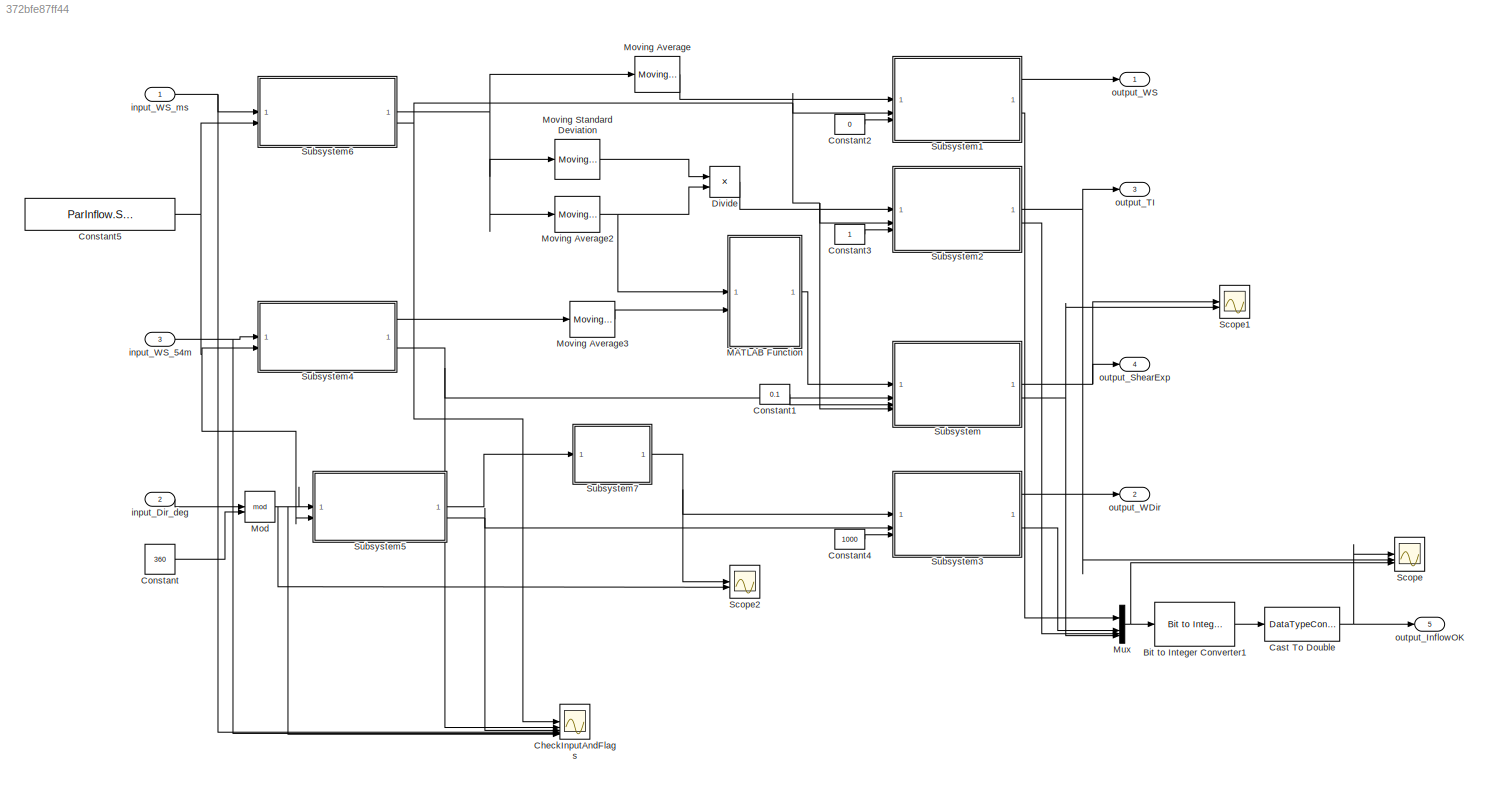
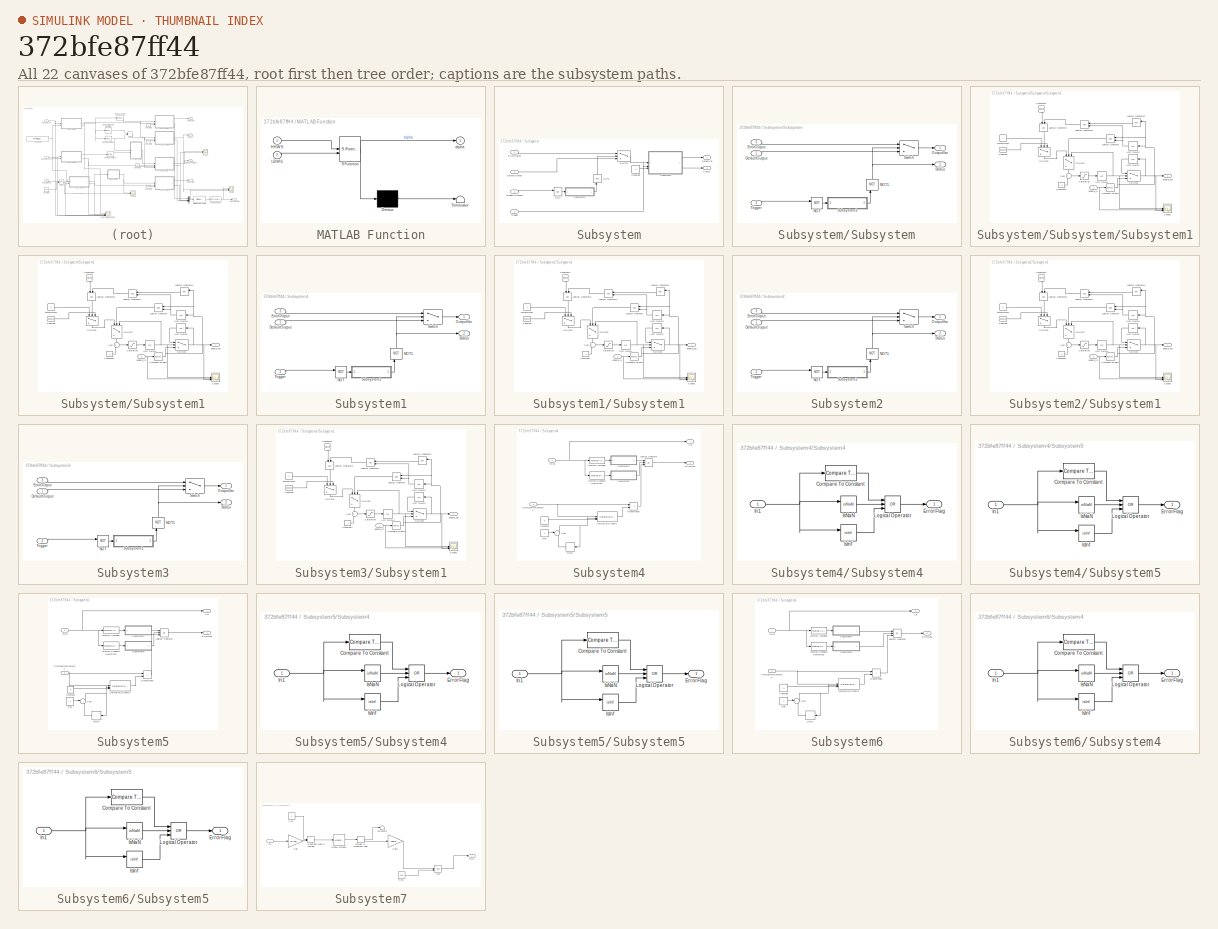
[diagram: thumbnail index - all 22 canvases of the model, root first then tree order]
MODEL slx_372bfe87ff44
KIND model
CONFIG AbsTol = auto
CONFIG EnableMultiTasking = off
CONFIG FixedStep = sample_time
CONFIG MaxStep = auto
CONFIG MinStep = auto
CONFIG RelTol = 1e-3
CONFIG SampleTimeConstraint = Unconstrained
CONFIG SolverName = FixedStepDiscrete
CONFIG StartTime = 0
CONFIG StopTime = duration
BLOCK [Reference] Bit to Integer Converter1  REF=simulink/Logic and Bit
Operations/Bit to Integer
Converter
  LibrarySourceBlock = commutil2/Bit to Integer\nConverter
  SourceBlock = simulink/Logic and Bit\nOperations/Bit to Integer\nConverter
  SourceType = Bit to Integer Converter
BLOCK [DataTypeConversion] Cast To Double
  OutDataTypeStr = double
  RndMeth = Floor
  SaturateOnIntegerOverflow = off
BLOCK [Scope] CheckInputAndFlags
  Floating = off
  NumInputPorts = 6
  ScopeSpecificationString = Simulink.scopes.TimeScopeBlockCfg('CurrentConfiguration', extmgr.ConfigurationSet(extmgr.Configuration('Core','General UI',true),extmgr.Configuration('Core','Source UI',true),extmgr.Configuration('Sources','WiredSimulink',true,'DataLoggingVariableName','ScopeData1'),extmgr.Configuration('Visuals','Time Domain',true,'SerializedDisplays',{struct('MinYLimReal','-14.31092','MaxYLimReal','25.34036','YL...<+1887ch>
BLOCK [Constant] Constant
  Value = 360
BLOCK [Constant] Constant1
  Value = 0.1
BLOCK [Constant] Constant2
  Value = 0
BLOCK [Constant] Constant3
BLOCK [Constant] Constant4
  Value = 1000
BLOCK [Constant] Constant5
  Value = ParInflow.StartupTime
BLOCK [Product] Divide
  Inputs = */
BLOCK [SubSystem] MATLAB Function
  ErrorFcn = Stateflow.Translate.translate
  PermitHierarchicalResolution = ExplicitOnly
  SFBlockType = MATLAB Function
  TreatAsAtomicUnit = on
BLOCK [Demux] MATLAB Function/ Demux 
  Outputs = 1
BLOCK [S-Function] MATLAB Function/ SFunction 
  EnableBusSupport = on
  FunctionName = sf_sfun
  PortCounts = [2 2]
  SFcnIsStateOwnerBlock = off
  SFunctionDeploymentMode = off
  Tag = Stateflow S-Function 2
BLOCK [Terminator] MATLAB Function/ Terminator 
BLOCK [Inport] MATLAB Function/HHWS
BLOCK [Inport] MATLAB Function/LBWS
  Port = 2
BLOCK [Outport] MATLAB Function/alpha
  VectorParamsAs1DForOutWhenUnconnected = off
BLOCK [Math] Mod
  Operator = mod
  SignedPower = on
BLOCK [Reference] Moving Average  REF=dspstat3/Moving
Average
  SourceBlock = dspstat3/Moving\nAverage
  SourceType = dsp.simulink.MovingAverage
BLOCK [Reference] Moving Average2  REF=dspstat3/Moving
Average
  SourceBlock = dspstat3/Moving\nAverage
  SourceType = dsp.simulink.MovingAverage
BLOCK [Reference] Moving Average3  REF=dspstat3/Moving
Average
  SourceBlock = dspstat3/Moving\nAverage
  SourceType = dsp.simulink.MovingAverage
BLOCK [Reference] Moving Standard Deviation  REF=dspstat3/Moving
Standard
Deviation
  SourceBlock = dspstat3/Moving\nStandard\nDeviation
  SourceType = dsp.simulink.MovingStandardDeviation
BLOCK [Mux] Mux
  DisplayOption = bar
BLOCK [Scope] Scope
  Floating = off
  NumInputPorts = 3
  ScopeSpecificationString = Simulink.scopes.TimeScopeBlockCfg('CurrentConfiguration', extmgr.ConfigurationSet(extmgr.Configuration('Core','General UI',true),extmgr.Configuration('Core','Source UI',true),extmgr.Configuration('Sources','WiredSimulink',true,'DataLoggingVariableName','ScopeData2'),extmgr.Configuration('Visuals','Time Domain',true,'SerializedDisplays',{struct('MinYLimReal','6.13326','MaxYLimReal','16.51196','YLab...<+1640ch>
BLOCK [Scope] Scope1
  Floating = off
  NumInputPorts = 2
  ScopeSpecificationString = Simulink.scopes.TimeScopeBlockCfg('CurrentConfiguration', extmgr.ConfigurationSet(extmgr.Configuration('Core','General UI',true),extmgr.Configuration('Core','Source UI',true),extmgr.Configuration('Sources','WiredSimulink',true,'DataLoggingVariableName','ScopeData3'),extmgr.Configuration('Visuals','Time Domain',true,'SerializedDisplays',{struct('MinYLimReal','-0.125','MaxYLimReal','1.125','YLabelRe...<+1787ch>
BLOCK [Scope] Scope2
  Floating = off
  NumInputPorts = 2
  ScopeSpecificationString = Simulink.scopes.TimeScopeBlockCfg('CurrentConfiguration', extmgr.ConfigurationSet(extmgr.Configuration('Core','General UI',true),extmgr.Configuration('Core','Source UI',true),extmgr.Configuration('Sources','WiredSimulink',true,'DataLoggingVariableName','ScopeData4'),extmgr.Configuration('Visuals','Time Domain',true,'SerializedDisplays',{struct('MinYLimReal','165.88052','MaxYLimReal','189.47476','Y...<+1681ch>
BLOCK [SubSystem] Subsystem
BLOCK [Constant] Subsystem/Constant
BLOCK [Inport] Subsystem/DefaultOutput
BLOCK [Inport] Subsystem/ErrorOutput
  Port = 3
BLOCK [Logic] Subsystem/NOT
  AllPortsSameDT = off
  IconShape = distinctive
  Operator = NOT
  OutDataTypeStr = boolean
BLOCK [Logic] Subsystem/NOT1
  AllPortsSameDT = off
  IconShape = distinctive
  NameLocation = right
  Operator = NOT
  OutDataTypeStr = boolean
BLOCK [Outport] Subsystem/OutputVar
  VectorParamsAs1DForOutWhenUnconnected = off
BLOCK [Outport] Subsystem/Status
  Port = 2
  VectorParamsAs1DForOutWhenUnconnected = off
BLOCK [SubSystem] Subsystem/Subsystem
BLOCK [Inport] Subsystem/Subsystem/DefaultOutput
BLOCK [Inport] Subsystem/Subsystem/ErrorOutput
  Port = 3
BLOCK [Logic] Subsystem/Subsystem/NOT
  AllPortsSameDT = off
  IconShape = distinctive
  Operator = NOT
  OutDataTypeStr = boolean
BLOCK [Logic] Subsystem/Subsystem/NOT1
  AllPortsSameDT = off
  IconShape = distinctive
  NameLocation = right
  Operator = NOT
  OutDataTypeStr = boolean
BLOCK [Outport] Subsystem/Subsystem/OutputVar
  VectorParamsAs1DForOutWhenUnconnected = off
BLOCK [Outport] Subsystem/Subsystem/Status
  Port = 2
  VectorParamsAs1DForOutWhenUnconnected = off
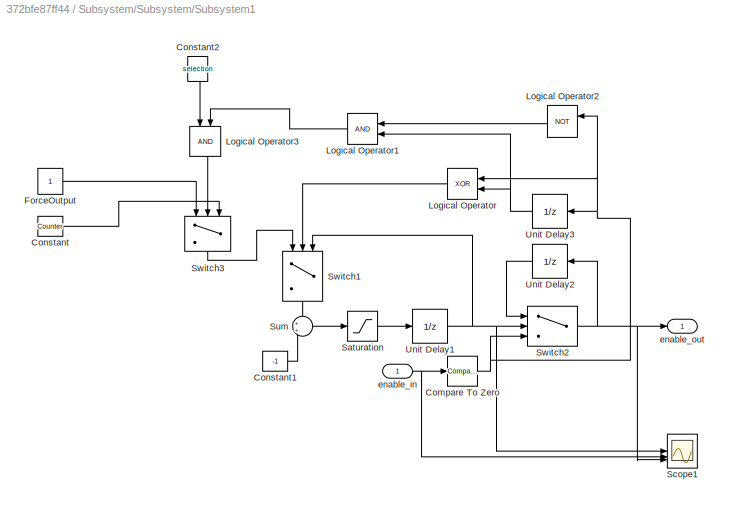
BLOCK [SubSystem] Subsystem/Subsystem/Subsystem1
BLOCK [Reference] Subsystem/Subsystem/Subsystem1/Compare To Zero  REF=simulink/Logic and Bit
Operations/Compare
To Zero
  SourceBlock = simulink/Logic and Bit\nOperations/Compare\nTo Zero
  SourceType = Compare To Zero
BLOCK [Constant] Subsystem/Subsystem/Subsystem1/Constant
  NameLocation = top
  Value = Counter
BLOCK [Constant] Subsystem/Subsystem/Subsystem1/Constant1
  Value = -1
BLOCK [Constant] Subsystem/Subsystem/Subsystem1/Constant2
  NameLocation = right
  Value = selection
BLOCK [Constant] Subsystem/Subsystem/Subsystem1/ForceOutput
  OutDataTypeStr = Inherit: Inherit via back propagation
BLOCK [Logic] Subsystem/Subsystem/Subsystem1/Logical Operator
  AllPortsSameDT = off
  NameLocation = top
  Operator = XOR
  OutDataTypeStr = boolean
BLOCK [Logic] Subsystem/Subsystem/Subsystem1/Logical Operator1
  AllPortsSameDT = off
  NameLocation = top
  OutDataTypeStr = boolean
BLOCK [Logic] Subsystem/Subsystem/Subsystem1/Logical Operator2
  AllPortsSameDT = off
  NameLocation = top
  Operator = NOT
  OutDataTypeStr = boolean
BLOCK [Logic] Subsystem/Subsystem/Subsystem1/Logical Operator3
  AllPortsSameDT = off
  NameLocation = left
  OutDataTypeStr = boolean
BLOCK [Saturate] Subsystem/Subsystem/Subsystem1/Saturation
  LowerLimit = -inf
  UpperLimit = inf
BLOCK [Scope] Subsystem/Subsystem/Subsystem1/Scope1
  Floating = off
  NumInputPorts = 3
  ScopeSpecificationString = Simulink.scopes.TimeScopeBlockCfg('CurrentConfiguration', extmgr.ConfigurationSet(extmgr.Configuration('Core','General UI',true),extmgr.Configuration('Core','Source UI',true),extmgr.Configuration('Sources','WiredSimulink',true,'DataLoggingVariableName','ScopeData2'),extmgr.Configuration('Visuals','Time Domain',true,'SerializedDisplays',{struct('MinYLimReal','-0.03155','MaxYLimReal','1.02709','YLab...<+1468ch>  <repeated x5 — deduplicated; at blocks: Scope1>
BLOCK [Sum] Subsystem/Subsystem/Subsystem1/Sum
BLOCK [Switch] Subsystem/Subsystem/Subsystem1/Switch1
  Criteria = u2 ~= 0
  InputSameDT = off
  NameLocation = left
  SaturateOnIntegerOverflow = off
BLOCK [Switch] Subsystem/Subsystem/Subsystem1/Switch2
  Criteria = u2 ~= 0
  InputSameDT = off
  SaturateOnIntegerOverflow = off
BLOCK [Switch] Subsystem/Subsystem/Subsystem1/Switch3
  Criteria = u2 ~= 0
  InputSameDT = off
  NameLocation = left
  SaturateOnIntegerOverflow = off
BLOCK [UnitDelay] Subsystem/Subsystem/Subsystem1/Unit Delay1
  HasFrameUpgradeWarning = on
  SampleTime = sampling_time
BLOCK [UnitDelay] Subsystem/Subsystem/Subsystem1/Unit Delay2
  HasFrameUpgradeWarning = on
  NameLocation = top
  SampleTime = sampling_time
BLOCK [UnitDelay] Subsystem/Subsystem/Subsystem1/Unit Delay3
  HasFrameUpgradeWarning = on
  NameLocation = top
  SampleTime = sampling_time
BLOCK [Inport] Subsystem/Subsystem/Subsystem1/enable_in
BLOCK [Outport] Subsystem/Subsystem/Subsystem1/enable_out
BLOCK [Switch] Subsystem/Subsystem/Switch
  Criteria = u2 ~= 0
  InputSameDT = off
  SaturateOnIntegerOverflow = off
BLOCK [Inport] Subsystem/Subsystem/Trigger
  Port = 2
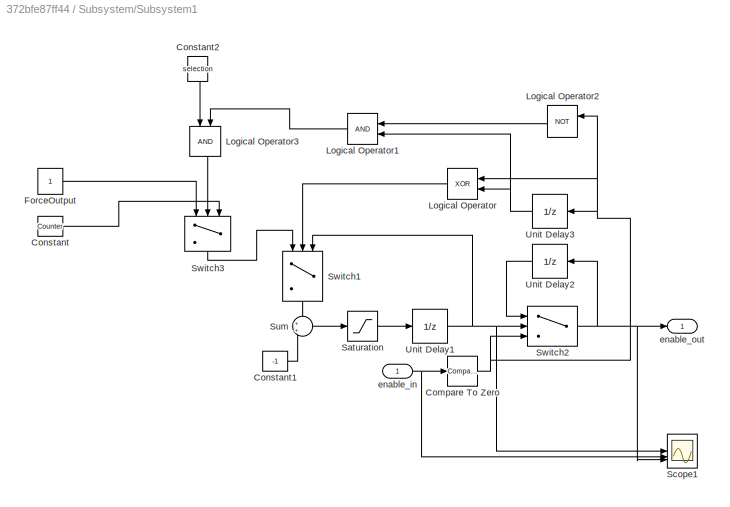
BLOCK [SubSystem] Subsystem/Subsystem1
BLOCK [Reference] Subsystem/Subsystem1/Compare To Zero  REF=simulink/Logic and Bit
Operations/Compare
To Zero
  SourceBlock = simulink/Logic and Bit\nOperations/Compare\nTo Zero
  SourceType = Compare To Zero
BLOCK [Constant] Subsystem/Subsystem1/Constant
  NameLocation = top
  Value = Counter
BLOCK [Constant] Subsystem/Subsystem1/Constant1
  Value = -1
BLOCK [Constant] Subsystem/Subsystem1/Constant2
  NameLocation = right
  Value = selection
BLOCK [Constant] Subsystem/Subsystem1/ForceOutput
  OutDataTypeStr = Inherit: Inherit via back propagation
BLOCK [Logic] Subsystem/Subsystem1/Logical Operator
  AllPortsSameDT = off
  NameLocation = top
  Operator = XOR
  OutDataTypeStr = boolean
BLOCK [Logic] Subsystem/Subsystem1/Logical Operator1
  AllPortsSameDT = off
  NameLocation = top
  OutDataTypeStr = boolean
BLOCK [Logic] Subsystem/Subsystem1/Logical Operator2
  AllPortsSameDT = off
  NameLocation = top
  Operator = NOT
  OutDataTypeStr = boolean
BLOCK [Logic] Subsystem/Subsystem1/Logical Operator3
  AllPortsSameDT = off
  NameLocation = left
  OutDataTypeStr = boolean
BLOCK [Saturate] Subsystem/Subsystem1/Saturation
  LowerLimit = -inf
  UpperLimit = inf
BLOCK [Scope] Subsystem/Subsystem1/Scope1
  Floating = off
  NumInputPorts = 3
BLOCK [Sum] Subsystem/Subsystem1/Sum
BLOCK [Switch] Subsystem/Subsystem1/Switch1
  Criteria = u2 ~= 0
  InputSameDT = off
  NameLocation = left
  SaturateOnIntegerOverflow = off
BLOCK [Switch] Subsystem/Subsystem1/Switch2
  Criteria = u2 ~= 0
  InputSameDT = off
  SaturateOnIntegerOverflow = off
BLOCK [Switch] Subsystem/Subsystem1/Switch3
  Criteria = u2 ~= 0
  InputSameDT = off
  NameLocation = left
  SaturateOnIntegerOverflow = off
BLOCK [UnitDelay] Subsystem/Subsystem1/Unit Delay1
  HasFrameUpgradeWarning = on
  SampleTime = sampling_time
BLOCK [UnitDelay] Subsystem/Subsystem1/Unit Delay2
  HasFrameUpgradeWarning = on
  NameLocation = top
  SampleTime = sampling_time
BLOCK [UnitDelay] Subsystem/Subsystem1/Unit Delay3
  HasFrameUpgradeWarning = on
  NameLocation = top
  SampleTime = sampling_time
BLOCK [Inport] Subsystem/Subsystem1/enable_in
BLOCK [Outport] Subsystem/Subsystem1/enable_out
BLOCK [Switch] Subsystem/Switch
  Criteria = u2 ~= 0
  InputSameDT = off
  SaturateOnIntegerOverflow = off
BLOCK [Inport] Subsystem/Trigger
  Port = 4
BLOCK [Inport] Subsystem/TriggerNOTFatal
  Port = 2
BLOCK [SubSystem] Subsystem1
BLOCK [Inport] Subsystem1/DefaultOutput
BLOCK [Inport] Subsystem1/ErrorOutput
  Port = 3
BLOCK [Logic] Subsystem1/NOT
  AllPortsSameDT = off
  IconShape = distinctive
  Operator = NOT
  OutDataTypeStr = boolean
BLOCK [Logic] Subsystem1/NOT1
  AllPortsSameDT = off
  IconShape = distinctive
  NameLocation = right
  Operator = NOT
  OutDataTypeStr = boolean
BLOCK [Outport] Subsystem1/OutputVar
  VectorParamsAs1DForOutWhenUnconnected = off
BLOCK [Outport] Subsystem1/Status
  Port = 2
  VectorParamsAs1DForOutWhenUnconnected = off
BLOCK [SubSystem] Subsystem1/Subsystem1
BLOCK [Reference] Subsystem1/Subsystem1/Compare To Zero  REF=simulink/Logic and Bit
Operations/Compare
To Zero
  SourceBlock = simulink/Logic and Bit\nOperations/Compare\nTo Zero
  SourceType = Compare To Zero
BLOCK [Constant] Subsystem1/Subsystem1/Constant
  NameLocation = top
  Value = Counter
BLOCK [Constant] Subsystem1/Subsystem1/Constant1
  Value = -1
BLOCK [Constant] Subsystem1/Subsystem1/Constant2
  NameLocation = right
  Value = selection
BLOCK [Constant] Subsystem1/Subsystem1/ForceOutput
  OutDataTypeStr = Inherit: Inherit via back propagation
BLOCK [Logic] Subsystem1/Subsystem1/Logical Operator
  AllPortsSameDT = off
  NameLocation = top
  Operator = XOR
  OutDataTypeStr = boolean
BLOCK [Logic] Subsystem1/Subsystem1/Logical Operator1
  AllPortsSameDT = off
  NameLocation = top
  OutDataTypeStr = boolean
BLOCK [Logic] Subsystem1/Subsystem1/Logical Operator2
  AllPortsSameDT = off
  NameLocation = top
  Operator = NOT
  OutDataTypeStr = boolean
BLOCK [Logic] Subsystem1/Subsystem1/Logical Operator3
  AllPortsSameDT = off
  NameLocation = left
  OutDataTypeStr = boolean
BLOCK [Saturate] Subsystem1/Subsystem1/Saturation
  LowerLimit = -inf
  UpperLimit = inf
BLOCK [Scope] Subsystem1/Subsystem1/Scope1
  Floating = off
  NumInputPorts = 3
BLOCK [Sum] Subsystem1/Subsystem1/Sum
BLOCK [Switch] Subsystem1/Subsystem1/Switch1
  Criteria = u2 ~= 0
  InputSameDT = off
  NameLocation = left
  SaturateOnIntegerOverflow = off
BLOCK [Switch] Subsystem1/Subsystem1/Switch2
  Criteria = u2 ~= 0
  InputSameDT = off
  SaturateOnIntegerOverflow = off
BLOCK [Switch] Subsystem1/Subsystem1/Switch3
  Criteria = u2 ~= 0
  InputSameDT = off
  NameLocation = left
  SaturateOnIntegerOverflow = off
BLOCK [UnitDelay] Subsystem1/Subsystem1/Unit Delay1
  HasFrameUpgradeWarning = on
  SampleTime = sampling_time
BLOCK [UnitDelay] Subsystem1/Subsystem1/Unit Delay2
  HasFrameUpgradeWarning = on
  NameLocation = top
  SampleTime = sampling_time
BLOCK [UnitDelay] Subsystem1/Subsystem1/Unit Delay3
  HasFrameUpgradeWarning = on
  NameLocation = top
  SampleTime = sampling_time
BLOCK [Inport] Subsystem1/Subsystem1/enable_in
BLOCK [Outport] Subsystem1/Subsystem1/enable_out
BLOCK [Switch] Subsystem1/Switch
  Criteria = u2 ~= 0
  InputSameDT = off
  SaturateOnIntegerOverflow = off
BLOCK [Inport] Subsystem1/Trigger
  Port = 2
BLOCK [SubSystem] Subsystem2
BLOCK [Inport] Subsystem2/DefaultOutput
BLOCK [Inport] Subsystem2/ErrorOutput
  Port = 3
BLOCK [Logic] Subsystem2/NOT
  AllPortsSameDT = off
  IconShape = distinctive
  Operator = NOT
  OutDataTypeStr = boolean
BLOCK [Logic] Subsystem2/NOT1
  AllPortsSameDT = off
  IconShape = distinctive
  NameLocation = right
  Operator = NOT
  OutDataTypeStr = boolean
BLOCK [Outport] Subsystem2/OutputVar
  VectorParamsAs1DForOutWhenUnconnected = off
BLOCK [Outport] Subsystem2/Status
  Port = 2
  VectorParamsAs1DForOutWhenUnconnected = off
BLOCK [SubSystem] Subsystem2/Subsystem1
BLOCK [Reference] Subsystem2/Subsystem1/Compare To Zero  REF=simulink/Logic and Bit
Operations/Compare
To Zero
  SourceBlock = simulink/Logic and Bit\nOperations/Compare\nTo Zero
  SourceType = Compare To Zero
BLOCK [Constant] Subsystem2/Subsystem1/Constant
  NameLocation = top
  Value = Counter
BLOCK [Constant] Subsystem2/Subsystem1/Constant1
  Value = -1
BLOCK [Constant] Subsystem2/Subsystem1/Constant2
  NameLocation = right
  Value = selection
BLOCK [Constant] Subsystem2/Subsystem1/ForceOutput
  OutDataTypeStr = Inherit: Inherit via back propagation
BLOCK [Logic] Subsystem2/Subsystem1/Logical Operator
  AllPortsSameDT = off
  NameLocation = top
  Operator = XOR
  OutDataTypeStr = boolean
BLOCK [Logic] Subsystem2/Subsystem1/Logical Operator1
  AllPortsSameDT = off
  NameLocation = top
  OutDataTypeStr = boolean
BLOCK [Logic] Subsystem2/Subsystem1/Logical Operator2
  AllPortsSameDT = off
  NameLocation = top
  Operator = NOT
  OutDataTypeStr = boolean
BLOCK [Logic] Subsystem2/Subsystem1/Logical Operator3
  AllPortsSameDT = off
  NameLocation = left
  OutDataTypeStr = boolean
BLOCK [Saturate] Subsystem2/Subsystem1/Saturation
  LowerLimit = -inf
  UpperLimit = inf
BLOCK [Scope] Subsystem2/Subsystem1/Scope1
  Floating = off
  NumInputPorts = 3
BLOCK [Sum] Subsystem2/Subsystem1/Sum
BLOCK [Switch] Subsystem2/Subsystem1/Switch1
  Criteria = u2 ~= 0
  InputSameDT = off
  NameLocation = left
  SaturateOnIntegerOverflow = off
BLOCK [Switch] Subsystem2/Subsystem1/Switch2
  Criteria = u2 ~= 0
  InputSameDT = off
  SaturateOnIntegerOverflow = off
BLOCK [Switch] Subsystem2/Subsystem1/Switch3
  Criteria = u2 ~= 0
  InputSameDT = off
  NameLocation = left
  SaturateOnIntegerOverflow = off
BLOCK [UnitDelay] Subsystem2/Subsystem1/Unit Delay1
  HasFrameUpgradeWarning = on
  SampleTime = sampling_time
BLOCK [UnitDelay] Subsystem2/Subsystem1/Unit Delay2
  HasFrameUpgradeWarning = on
  NameLocation = top
  SampleTime = sampling_time
BLOCK [UnitDelay] Subsystem2/Subsystem1/Unit Delay3
  HasFrameUpgradeWarning = on
  NameLocation = top
  SampleTime = sampling_time
BLOCK [Inport] Subsystem2/Subsystem1/enable_in
BLOCK [Outport] Subsystem2/Subsystem1/enable_out
BLOCK [Switch] Subsystem2/Switch
  Criteria = u2 ~= 0
  InputSameDT = off
  SaturateOnIntegerOverflow = off
BLOCK [Inport] Subsystem2/Trigger
  Port = 2
BLOCK [SubSystem] Subsystem3
BLOCK [Inport] Subsystem3/DefaultOutput
BLOCK [Inport] Subsystem3/ErrorOutput
  Port = 3
BLOCK [Logic] Subsystem3/NOT
  AllPortsSameDT = off
  IconShape = distinctive
  Operator = NOT
  OutDataTypeStr = boolean
BLOCK [Logic] Subsystem3/NOT1
  AllPortsSameDT = off
  IconShape = distinctive
  NameLocation = right
  Operator = NOT
  OutDataTypeStr = boolean
BLOCK [Outport] Subsystem3/OutputVar
  VectorParamsAs1DForOutWhenUnconnected = off
BLOCK [Outport] Subsystem3/Status
  Port = 2
  VectorParamsAs1DForOutWhenUnconnected = off
BLOCK [SubSystem] Subsystem3/Subsystem1
BLOCK [Reference] Subsystem3/Subsystem1/Compare To Zero  REF=simulink/Logic and Bit
Operations/Compare
To Zero
  SourceBlock = simulink/Logic and Bit\nOperations/Compare\nTo Zero
  SourceType = Compare To Zero
BLOCK [Constant] Subsystem3/Subsystem1/Constant
  NameLocation = top
  Value = Counter
BLOCK [Constant] Subsystem3/Subsystem1/Constant1
  Value = -1
BLOCK [Constant] Subsystem3/Subsystem1/Constant2
  NameLocation = right
  Value = selection
BLOCK [Constant] Subsystem3/Subsystem1/ForceOutput
  OutDataTypeStr = Inherit: Inherit via back propagation
BLOCK [Logic] Subsystem3/Subsystem1/Logical Operator
  AllPortsSameDT = off
  NameLocation = top
  Operator = XOR
  OutDataTypeStr = boolean
BLOCK [Logic] Subsystem3/Subsystem1/Logical Operator1
  AllPortsSameDT = off
  NameLocation = top
  OutDataTypeStr = boolean
BLOCK [Logic] Subsystem3/Subsystem1/Logical Operator2
  AllPortsSameDT = off
  NameLocation = top
  Operator = NOT
  OutDataTypeStr = boolean
BLOCK [Logic] Subsystem3/Subsystem1/Logical Operator3
  AllPortsSameDT = off
  NameLocation = left
  OutDataTypeStr = boolean
BLOCK [Saturate] Subsystem3/Subsystem1/Saturation
  LowerLimit = -inf
  UpperLimit = inf
BLOCK [Scope] Subsystem3/Subsystem1/Scope1
  Floating = off
  NumInputPorts = 3
BLOCK [Sum] Subsystem3/Subsystem1/Sum
BLOCK [Switch] Subsystem3/Subsystem1/Switch1
  Criteria = u2 ~= 0
  InputSameDT = off
  NameLocation = left
  SaturateOnIntegerOverflow = off
BLOCK [Switch] Subsystem3/Subsystem1/Switch2
  Criteria = u2 ~= 0
  InputSameDT = off
  SaturateOnIntegerOverflow = off
BLOCK [Switch] Subsystem3/Subsystem1/Switch3
  Criteria = u2 ~= 0
  InputSameDT = off
  NameLocation = left
  SaturateOnIntegerOverflow = off
BLOCK [UnitDelay] Subsystem3/Subsystem1/Unit Delay1
  HasFrameUpgradeWarning = on
  SampleTime = sampling_time
BLOCK [UnitDelay] Subsystem3/Subsystem1/Unit Delay2
  HasFrameUpgradeWarning = on
  NameLocation = top
  SampleTime = sampling_time
BLOCK [UnitDelay] Subsystem3/Subsystem1/Unit Delay3
  HasFrameUpgradeWarning = on
  NameLocation = top
  SampleTime = sampling_time
BLOCK [Inport] Subsystem3/Subsystem1/enable_in
BLOCK [Outport] Subsystem3/Subsystem1/enable_out
BLOCK [Switch] Subsystem3/Switch
  Criteria = u2 ~= 0
  InputSameDT = off
  SaturateOnIntegerOverflow = off
BLOCK [Inport] Subsystem3/Trigger
  Port = 2
BLOCK [SubSystem] Subsystem4
BLOCK [Constant] Subsystem4/Constant
  Value = 0
BLOCK [Delay] Subsystem4/Delay
  DelayLength = 1
  InitialCondition = 0
  InputPortMap = u0
  NameLocation = top
BLOCK [Outport] Subsystem4/ErrorFlag
  Port = 2
  VectorParamsAs1DForOutWhenUnconnected = off
BLOCK [RelationalOperator] Subsystem4/GreaterThan
  InputSameDT = off
  Operator = >
  OutDataTypeStr = boolean
  RndMeth = Simplest
BLOCK [Inport] Subsystem4/InVar
BLOCK [Logic] Subsystem4/Logical Operator
  AllPortsSameDT = off
  Inputs = 3
  Operator = OR
  OutDataTypeStr = boolean
BLOCK [Reference] Subsystem4/Moving Average5  REF=dspstat3/Moving
Average
  SourceBlock = dspstat3/Moving\nAverage
  SourceType = dsp.simulink.MovingAverage
BLOCK [Reference] Subsystem4/Moving Standard Deviation1  REF=dspstat3/Moving
Standard
Deviation
  SourceBlock = dspstat3/Moving\nStandard\nDeviation
  SourceType = dsp.simulink.MovingStandardDeviation
BLOCK [Constant] Subsystem4/One
  OutDataTypeStr = Inherit: Inherit via back propagation
BLOCK [Reference] Subsystem4/Saturation Dynamic  REF=simulink/Discontinuities/Saturation
Dynamic
  SourceBlock = simulink/Discontinuities/Saturation\nDynamic
  SourceType = Saturation Dynamic
BLOCK [Inport] Subsystem4/StartupTimeSamples
  Port = 2
BLOCK [SubSystem] Subsystem4/Subsystem4
BLOCK [Reference] Subsystem4/Subsystem4/Compare To Constant  REF=simulink/Logic and Bit
Operations/Compare
To Constant
  SourceBlock = simulink/Logic and Bit\nOperations/Compare\nTo Constant
  SourceType = Compare To Constant
BLOCK [Outport] Subsystem4/Subsystem4/ErrorFlag
  VectorParamsAs1DForOutWhenUnconnected = off
BLOCK [Inport] Subsystem4/Subsystem4/In1
BLOCK [RelationalOperator] Subsystem4/Subsystem4/IsInf
  InputSameDT = off
  Operator = isInf
  OutDataTypeStr = boolean
  RndMeth = Simplest
BLOCK [RelationalOperator] Subsystem4/Subsystem4/IsNaN
  InputSameDT = off
  Operator = isNaN
  OutDataTypeStr = boolean
  RndMeth = Simplest
BLOCK [Logic] Subsystem4/Subsystem4/Logical Operator
  AllPortsSameDT = off
  Inputs = 3
  Operator = OR
  OutDataTypeStr = boolean
BLOCK [SubSystem] Subsystem4/Subsystem5
BLOCK [Reference] Subsystem4/Subsystem5/Compare To Constant  REF=simulink/Logic and Bit
Operations/Compare
To Constant
  SourceBlock = simulink/Logic and Bit\nOperations/Compare\nTo Constant
  SourceType = Compare To Constant
BLOCK [Outport] Subsystem4/Subsystem5/ErrorFlag
  VectorParamsAs1DForOutWhenUnconnected = off
BLOCK [Inport] Subsystem4/Subsystem5/In1
BLOCK [RelationalOperator] Subsystem4/Subsystem5/IsInf
  InputSameDT = off
  Operator = isInf
  OutDataTypeStr = boolean
  RndMeth = Simplest
BLOCK [RelationalOperator] Subsystem4/Subsystem5/IsNaN
  InputSameDT = off
  Operator = isNaN
  OutDataTypeStr = boolean
  RndMeth = Simplest
BLOCK [Logic] Subsystem4/Subsystem5/Logical Operator
  AllPortsSameDT = off
  Inputs = 3
  Operator = OR
  OutDataTypeStr = boolean
BLOCK [Sum] Subsystem4/Sum
  Inputs = |++
BLOCK [Outport] Subsystem4/Var
  VectorParamsAs1DForOutWhenUnconnected = off
BLOCK [SubSystem] Subsystem5
BLOCK [Constant] Subsystem5/Constant
  Value = 0
BLOCK [Delay] Subsystem5/Delay
  DelayLength = 1
  InitialCondition = 0
  InputPortMap = u0
  NameLocation = top
BLOCK [Outport] Subsystem5/ErrorFlag
  Port = 2
  VectorParamsAs1DForOutWhenUnconnected = off
BLOCK [RelationalOperator] Subsystem5/GreaterThan
  InputSameDT = off
  Operator = >
  OutDataTypeStr = boolean
  RndMeth = Simplest
BLOCK [Inport] Subsystem5/InVar
BLOCK [Logic] Subsystem5/Logical Operator
  AllPortsSameDT = off
  Inputs = 3
  Operator = OR
  OutDataTypeStr = boolean
BLOCK [Reference] Subsystem5/Moving Average5  REF=dspstat3/Moving
Average
  SourceBlock = dspstat3/Moving\nAverage
  SourceType = dsp.simulink.MovingAverage
BLOCK [Reference] Subsystem5/Moving Standard Deviation1  REF=dspstat3/Moving
Standard
Deviation
  SourceBlock = dspstat3/Moving\nStandard\nDeviation
  SourceType = dsp.simulink.MovingStandardDeviation
BLOCK [Constant] Subsystem5/One
  OutDataTypeStr = Inherit: Inherit via back propagation
BLOCK [Reference] Subsystem5/Saturation Dynamic  REF=simulink/Discontinuities/Saturation
Dynamic
  SourceBlock = simulink/Discontinuities/Saturation\nDynamic
  SourceType = Saturation Dynamic
BLOCK [Inport] Subsystem5/StartupTimeSamples
  Port = 2
BLOCK [SubSystem] Subsystem5/Subsystem4
BLOCK [Reference] Subsystem5/Subsystem4/Compare To Constant  REF=simulink/Logic and Bit
Operations/Compare
To Constant
  SourceBlock = simulink/Logic and Bit\nOperations/Compare\nTo Constant
  SourceType = Compare To Constant
BLOCK [Outport] Subsystem5/Subsystem4/ErrorFlag
  VectorParamsAs1DForOutWhenUnconnected = off
BLOCK [Inport] Subsystem5/Subsystem4/In1
BLOCK [RelationalOperator] Subsystem5/Subsystem4/IsInf
  InputSameDT = off
  Operator = isInf
  OutDataTypeStr = boolean
  RndMeth = Simplest
BLOCK [RelationalOperator] Subsystem5/Subsystem4/IsNaN
  InputSameDT = off
  Operator = isNaN
  OutDataTypeStr = boolean
  RndMeth = Simplest
BLOCK [Logic] Subsystem5/Subsystem4/Logical Operator
  AllPortsSameDT = off
  Inputs = 3
  Operator = OR
  OutDataTypeStr = boolean
BLOCK [SubSystem] Subsystem5/Subsystem5
BLOCK [Reference] Subsystem5/Subsystem5/Compare To Constant  REF=simulink/Logic and Bit
Operations/Compare
To Constant
  SourceBlock = simulink/Logic and Bit\nOperations/Compare\nTo Constant
  SourceType = Compare To Constant
BLOCK [Outport] Subsystem5/Subsystem5/ErrorFlag
  VectorParamsAs1DForOutWhenUnconnected = off
BLOCK [Inport] Subsystem5/Subsystem5/In1
BLOCK [RelationalOperator] Subsystem5/Subsystem5/IsInf
  InputSameDT = off
  Operator = isInf
  OutDataTypeStr = boolean
  RndMeth = Simplest
BLOCK [RelationalOperator] Subsystem5/Subsystem5/IsNaN
  InputSameDT = off
  Operator = isNaN
  OutDataTypeStr = boolean
  RndMeth = Simplest
BLOCK [Logic] Subsystem5/Subsystem5/Logical Operator
  AllPortsSameDT = off
  Inputs = 3
  Operator = OR
  OutDataTypeStr = boolean
BLOCK [Sum] Subsystem5/Sum
  Inputs = |++
BLOCK [Outport] Subsystem5/Var
  VectorParamsAs1DForOutWhenUnconnected = off
BLOCK [SubSystem] Subsystem6
BLOCK [Constant] Subsystem6/Constant
  Value = 0
BLOCK [Delay] Subsystem6/Delay
  DelayLength = 1
  InitialCondition = 0
  InputPortMap = u0
  NameLocation = top
BLOCK [Outport] Subsystem6/ErrorFlag
  Port = 2
  VectorParamsAs1DForOutWhenUnconnected = off
BLOCK [RelationalOperator] Subsystem6/GreaterThan
  InputSameDT = off
  Operator = >
  OutDataTypeStr = boolean
  RndMeth = Simplest
BLOCK [Inport] Subsystem6/InVar
BLOCK [Logic] Subsystem6/Logical Operator
  AllPortsSameDT = off
  Inputs = 3
  Operator = OR
  OutDataTypeStr = boolean
BLOCK [Reference] Subsystem6/Moving Average5  REF=dspstat3/Moving
Average
  SourceBlock = dspstat3/Moving\nAverage
  SourceType = dsp.simulink.MovingAverage
BLOCK [Reference] Subsystem6/Moving Standard Deviation1  REF=dspstat3/Moving
Standard
Deviation
  SourceBlock = dspstat3/Moving\nStandard\nDeviation
  SourceType = dsp.simulink.MovingStandardDeviation
BLOCK [Constant] Subsystem6/One
  OutDataTypeStr = Inherit: Inherit via back propagation
BLOCK [Reference] Subsystem6/Saturation Dynamic  REF=simulink/Discontinuities/Saturation
Dynamic
  SourceBlock = simulink/Discontinuities/Saturation\nDynamic
  SourceType = Saturation Dynamic
BLOCK [Inport] Subsystem6/StartupTimeSamples
  Port = 2
BLOCK [SubSystem] Subsystem6/Subsystem4
BLOCK [Reference] Subsystem6/Subsystem4/Compare To Constant  REF=simulink/Logic and Bit
Operations/Compare
To Constant
  SourceBlock = simulink/Logic and Bit\nOperations/Compare\nTo Constant
  SourceType = Compare To Constant
BLOCK [Outport] Subsystem6/Subsystem4/ErrorFlag
  VectorParamsAs1DForOutWhenUnconnected = off
BLOCK [Inport] Subsystem6/Subsystem4/In1
BLOCK [RelationalOperator] Subsystem6/Subsystem4/IsInf
  InputSameDT = off
  Operator = isInf
  OutDataTypeStr = boolean
  RndMeth = Simplest
BLOCK [RelationalOperator] Subsystem6/Subsystem4/IsNaN
  InputSameDT = off
  Operator = isNaN
  OutDataTypeStr = boolean
  RndMeth = Simplest
BLOCK [Logic] Subsystem6/Subsystem4/Logical Operator
  AllPortsSameDT = off
  Inputs = 3
  Operator = OR
  OutDataTypeStr = boolean
BLOCK [SubSystem] Subsystem6/Subsystem5
BLOCK [Reference] Subsystem6/Subsystem5/Compare To Constant  REF=simulink/Logic and Bit
Operations/Compare
To Constant
  SourceBlock = simulink/Logic and Bit\nOperations/Compare\nTo Constant
  SourceType = Compare To Constant
BLOCK [Outport] Subsystem6/Subsystem5/ErrorFlag
  VectorParamsAs1DForOutWhenUnconnected = off
BLOCK [Inport] Subsystem6/Subsystem5/In1
BLOCK [RelationalOperator] Subsystem6/Subsystem5/IsInf
  InputSameDT = off
  Operator = isInf
  OutDataTypeStr = boolean
  RndMeth = Simplest
BLOCK [RelationalOperator] Subsystem6/Subsystem5/IsNaN
  InputSameDT = off
  Operator = isNaN
  OutDataTypeStr = boolean
  RndMeth = Simplest
BLOCK [Logic] Subsystem6/Subsystem5/Logical Operator
  AllPortsSameDT = off
  Inputs = 3
  Operator = OR
  OutDataTypeStr = boolean
BLOCK [Sum] Subsystem6/Sum
  Inputs = |++
BLOCK [Outport] Subsystem6/Var
  VectorParamsAs1DForOutWhenUnconnected = off
BLOCK [SubSystem] Subsystem7
BLOCK [ComplexToMagnitudeAngle] Subsystem7/Complex to Magnitude-Angle
BLOCK [Gain] Subsystem7/Gain
  Gain = pi/180
BLOCK [Gain] Subsystem7/Gain1
  Gain = 180/pi
BLOCK [Inport] Subsystem7/In1
BLOCK [MagnitudeAngleToComplex] Subsystem7/Magnitude-Angle to Complex
BLOCK [Math] Subsystem7/Mod
  Operator = mod
  SignedPower = on
BLOCK [Reference] Subsystem7/Moving Average1  REF=dspstat3/Moving
Average
  SourceBlock = dspstat3/Moving\nAverage
  SourceType = dsp.simulink.MovingAverage
BLOCK [Constant] Subsystem7/One
  OutDataTypeStr = Inherit: Inherit via back propagation
BLOCK [Constant] Subsystem7/One1
  OutDataTypeStr = Inherit: Inherit via back propagation
  Value = 360
BLOCK [Outport] Subsystem7/Out1
  VectorParamsAs1DForOutWhenUnconnected = off
BLOCK [Terminator] Subsystem7/Terminator
BLOCK [Inport] input_Dir_deg
  Port = 2
  PortDimensions = 1
BLOCK [Inport] input_WS_54m
  Port = 3
  PortDimensions = 1
BLOCK [Inport] input_WS_ms
  PortDimensions = 1
BLOCK [Outport] output_InflowOK
  Port = 5
  VectorParamsAs1DForOutWhenUnconnected = off
BLOCK [Outport] output_ShearExp
  Port = 4
  VectorParamsAs1DForOutWhenUnconnected = off
BLOCK [Outport] output_TI
  Port = 3
  VectorParamsAs1DForOutWhenUnconnected = off
BLOCK [Outport] output_WDir
  Port = 2
  VectorParamsAs1DForOutWhenUnconnected = off
BLOCK [Outport] output_WS
  VectorParamsAs1DForOutWhenUnconnected = off
LINE Bit to Integer Converter1:1 -> Cast To Double:1
NET Cast To Double:1 -> Scope:1, output_InflowOK:1
LINE Constant1:1 -> Subsystem:3
LINE Constant2:1 -> Subsystem1:3
LINE Constant3:1 -> Subsystem2:3
LINE Constant4:1 -> Subsystem3:3
NET Constant5:1 -> Subsystem4:2, Subsystem5:2, Subsystem6:2
LINE Constant:1 -> Mod:2
LINE Divide:1 -> Subsystem2:1
LINE MATLAB Function:1 -> Subsystem:1
NET Mod:1 -> CheckInputAndFlags:6, Scope2:2, Subsystem5:1
NET Moving Average2:1 -> Divide:2, MATLAB Function:1
LINE Moving Average3:1 -> MATLAB Function:2
LINE Moving Average:1 -> Subsystem1:1
LINE Moving Standard Deviation:1 -> Divide:1
NET Mux:1 -> Bit to Integer Converter1:1, Scope:3
LINE Subsystem/Constant:1 -> Subsystem/Subsystem:3
LINE Subsystem/DefaultOutput:1 -> Subsystem/Switch:3
LINE Subsystem/ErrorOutput:1 -> Subsystem/Switch:1
LINE Subsystem/NOT1:1 -> Subsystem/Switch:2
LINE Subsystem/NOT:1 -> Subsystem/Subsystem1:1
LINE Subsystem/Subsystem/DefaultOutput:1 -> Subsystem/Subsystem/Switch:3
LINE Subsystem/Subsystem/ErrorOutput:1 -> Subsystem/Subsystem/Switch:1
NET Subsystem/Subsystem/NOT1:1 -> Subsystem/Subsystem/Status:1, Subsystem/Subsystem/Switch:2
LINE Subsystem/Subsystem/NOT:1 -> Subsystem/Subsystem/Subsystem1:1
NET Subsystem/Subsystem/Subsystem1/Compare To Zero:1 -> Subsystem/Subsystem/Subsystem1/Logical Operator2:1, Subsystem/Subsystem/Subsystem1/Logical Operator:1, Subsystem/Subsystem/Subsystem1/Switch2:3, Subsystem/Subsystem/Subsystem1/Unit Delay3:1
LINE Subsystem/Subsystem/Subsystem1/Constant1:1 -> Subsystem/Subsystem/Subsystem1/Sum:2
LINE Subsystem/Subsystem/Subsystem1/Constant2:1 -> Subsystem/Subsystem/Subsystem1/Logical Operator3:1
LINE Subsystem/Subsystem/Subsystem1/Constant:1 -> Subsystem/Subsystem/Subsystem1/Switch3:3
LINE Subsystem/Subsystem/Subsystem1/ForceOutput:1 -> Subsystem/Subsystem/Subsystem1/Switch3:1
LINE Subsystem/Subsystem/Subsystem1/Logical Operator1:1 -> Subsystem/Subsystem/Subsystem1/Logical Operator3:2
LINE Subsystem/Subsystem/Subsystem1/Logical Operator2:1 -> Subsystem/Subsystem/Subsystem1/Logical Operator1:1
LINE Subsystem/Subsystem/Subsystem1/Logical Operator3:1 -> Subsystem/Subsystem/Subsystem1/Switch3:2
LINE Subsystem/Subsystem/Subsystem1/Logical Operator:1 -> Subsystem/Subsystem/Subsystem1/Switch1:2
LINE Subsystem/Subsystem/Subsystem1/Saturation:1 -> Subsystem/Subsystem/Subsystem1/Unit Delay1:1
LINE Subsystem/Subsystem/Subsystem1/Sum:1 -> Subsystem/Subsystem/Subsystem1/Saturation:1
LINE Subsystem/Subsystem/Subsystem1/Switch1:1 -> Subsystem/Subsystem/Subsystem1/Sum:1
NET Subsystem/Subsystem/Subsystem1/Switch2:1 -> Subsystem/Subsystem/Subsystem1/Scope1:3, Subsystem/Subsystem/Subsystem1/Unit Delay2:1, Subsystem/Subsystem/Subsystem1/enable_out:1
LINE Subsystem/Subsystem/Subsystem1/Switch3:1 -> Subsystem/Subsystem/Subsystem1/Switch1:1
NET Subsystem/Subsystem/Subsystem1/Unit Delay1:1 -> Subsystem/Subsystem/Subsystem1/Scope1:1, Subsystem/Subsystem/Subsystem1/Switch1:3, Subsystem/Subsystem/Subsystem1/Switch2:2
LINE Subsystem/Subsystem/Subsystem1/Unit Delay2:1 -> Subsystem/Subsystem/Subsystem1/Switch2:1
NET Subsystem/Subsystem/Subsystem1/Unit Delay3:1 -> Subsystem/Subsystem/Subsystem1/Logical Operator1:2, Subsystem/Subsystem/Subsystem1/Logical Operator:2
NET Subsystem/Subsystem/Subsystem1/enable_in:1 -> Subsystem/Subsystem/Subsystem1/Compare To Zero:1, Subsystem/Subsystem/Subsystem1/Scope1:2
LINE Subsystem/Subsystem/Subsystem1:1 -> Subsystem/Subsystem/NOT1:1
LINE Subsystem/Subsystem/Switch:1 -> Subsystem/Subsystem/OutputVar:1
LINE Subsystem/Subsystem/Trigger:1 -> Subsystem/Subsystem/NOT:1
NET Subsystem/Subsystem1/Compare To Zero:1 -> Subsystem/Subsystem1/Logical Operator2:1, Subsystem/Subsystem1/Logical Operator:1, Subsystem/Subsystem1/Switch2:3, Subsystem/Subsystem1/Unit Delay3:1
LINE Subsystem/Subsystem1/Constant1:1 -> Subsystem/Subsystem1/Sum:2
LINE Subsystem/Subsystem1/Constant2:1 -> Subsystem/Subsystem1/Logical Operator3:1
LINE Subsystem/Subsystem1/Constant:1 -> Subsystem/Subsystem1/Switch3:3
LINE Subsystem/Subsystem1/ForceOutput:1 -> Subsystem/Subsystem1/Switch3:1
LINE Subsystem/Subsystem1/Logical Operator1:1 -> Subsystem/Subsystem1/Logical Operator3:2
LINE Subsystem/Subsystem1/Logical Operator2:1 -> Subsystem/Subsystem1/Logical Operator1:1
LINE Subsystem/Subsystem1/Logical Operator3:1 -> Subsystem/Subsystem1/Switch3:2
LINE Subsystem/Subsystem1/Logical Operator:1 -> Subsystem/Subsystem1/Switch1:2
LINE Subsystem/Subsystem1/Saturation:1 -> Subsystem/Subsystem1/Unit Delay1:1
LINE Subsystem/Subsystem1/Sum:1 -> Subsystem/Subsystem1/Saturation:1
LINE Subsystem/Subsystem1/Switch1:1 -> Subsystem/Subsystem1/Sum:1
NET Subsystem/Subsystem1/Switch2:1 -> Subsystem/Subsystem1/Scope1:3, Subsystem/Subsystem1/Unit Delay2:1, Subsystem/Subsystem1/enable_out:1
LINE Subsystem/Subsystem1/Switch3:1 -> Subsystem/Subsystem1/Switch1:1
NET Subsystem/Subsystem1/Unit Delay1:1 -> Subsystem/Subsystem1/Scope1:1, Subsystem/Subsystem1/Switch1:3, Subsystem/Subsystem1/Switch2:2
LINE Subsystem/Subsystem1/Unit Delay2:1 -> Subsystem/Subsystem1/Switch2:1
NET Subsystem/Subsystem1/Unit Delay3:1 -> Subsystem/Subsystem1/Logical Operator1:2, Subsystem/Subsystem1/Logical Operator:2
NET Subsystem/Subsystem1/enable_in:1 -> Subsystem/Subsystem1/Compare To Zero:1, Subsystem/Subsystem1/Scope1:2
LINE Subsystem/Subsystem1:1 -> Subsystem/NOT1:1
LINE Subsystem/Subsystem:1 -> Subsystem/OutputVar:1
LINE Subsystem/Subsystem:2 -> Subsystem/Status:1
LINE Subsystem/Switch:1 -> Subsystem/Subsystem:1
LINE Subsystem/Trigger:1 -> Subsystem/Subsystem:2
LINE Subsystem/TriggerNOTFatal:1 -> Subsystem/NOT:1
LINE Subsystem1/DefaultOutput:1 -> Subsystem1/Switch:3
LINE Subsystem1/ErrorOutput:1 -> Subsystem1/Switch:1
NET Subsystem1/NOT1:1 -> Subsystem1/Status:1, Subsystem1/Switch:2
LINE Subsystem1/NOT:1 -> Subsystem1/Subsystem1:1
NET Subsystem1/Subsystem1/Compare To Zero:1 -> Subsystem1/Subsystem1/Logical Operator2:1, Subsystem1/Subsystem1/Logical Operator:1, Subsystem1/Subsystem1/Switch2:3, Subsystem1/Subsystem1/Unit Delay3:1
LINE Subsystem1/Subsystem1/Constant1:1 -> Subsystem1/Subsystem1/Sum:2
LINE Subsystem1/Subsystem1/Constant2:1 -> Subsystem1/Subsystem1/Logical Operator3:1
LINE Subsystem1/Subsystem1/Constant:1 -> Subsystem1/Subsystem1/Switch3:3
LINE Subsystem1/Subsystem1/ForceOutput:1 -> Subsystem1/Subsystem1/Switch3:1
LINE Subsystem1/Subsystem1/Logical Operator1:1 -> Subsystem1/Subsystem1/Logical Operator3:2
LINE Subsystem1/Subsystem1/Logical Operator2:1 -> Subsystem1/Subsystem1/Logical Operator1:1
LINE Subsystem1/Subsystem1/Logical Operator3:1 -> Subsystem1/Subsystem1/Switch3:2
LINE Subsystem1/Subsystem1/Logical Operator:1 -> Subsystem1/Subsystem1/Switch1:2
LINE Subsystem1/Subsystem1/Saturation:1 -> Subsystem1/Subsystem1/Unit Delay1:1
LINE Subsystem1/Subsystem1/Sum:1 -> Subsystem1/Subsystem1/Saturation:1
LINE Subsystem1/Subsystem1/Switch1:1 -> Subsystem1/Subsystem1/Sum:1
NET Subsystem1/Subsystem1/Switch2:1 -> Subsystem1/Subsystem1/Scope1:3, Subsystem1/Subsystem1/Unit Delay2:1, Subsystem1/Subsystem1/enable_out:1
LINE Subsystem1/Subsystem1/Switch3:1 -> Subsystem1/Subsystem1/Switch1:1
NET Subsystem1/Subsystem1/Unit Delay1:1 -> Subsystem1/Subsystem1/Scope1:1, Subsystem1/Subsystem1/Switch1:3, Subsystem1/Subsystem1/Switch2:2
LINE Subsystem1/Subsystem1/Unit Delay2:1 -> Subsystem1/Subsystem1/Switch2:1
NET Subsystem1/Subsystem1/Unit Delay3:1 -> Subsystem1/Subsystem1/Logical Operator1:2, Subsystem1/Subsystem1/Logical Operator:2
NET Subsystem1/Subsystem1/enable_in:1 -> Subsystem1/Subsystem1/Compare To Zero:1, Subsystem1/Subsystem1/Scope1:2
LINE Subsystem1/Subsystem1:1 -> Subsystem1/NOT1:1
LINE Subsystem1/Switch:1 -> Subsystem1/OutputVar:1
LINE Subsystem1/Trigger:1 -> Subsystem1/NOT:1
LINE Subsystem1:1 -> output_WS:1
LINE Subsystem1:2 -> Mux:1
LINE Subsystem2/DefaultOutput:1 -> Subsystem2/Switch:3
LINE Subsystem2/ErrorOutput:1 -> Subsystem2/Switch:1
NET Subsystem2/NOT1:1 -> Subsystem2/Status:1, Subsystem2/Switch:2
LINE Subsystem2/NOT:1 -> Subsystem2/Subsystem1:1
NET Subsystem2/Subsystem1/Compare To Zero:1 -> Subsystem2/Subsystem1/Logical Operator2:1, Subsystem2/Subsystem1/Logical Operator:1, Subsystem2/Subsystem1/Switch2:3, Subsystem2/Subsystem1/Unit Delay3:1
LINE Subsystem2/Subsystem1/Constant1:1 -> Subsystem2/Subsystem1/Sum:2
LINE Subsystem2/Subsystem1/Constant2:1 -> Subsystem2/Subsystem1/Logical Operator3:1
LINE Subsystem2/Subsystem1/Constant:1 -> Subsystem2/Subsystem1/Switch3:3
LINE Subsystem2/Subsystem1/ForceOutput:1 -> Subsystem2/Subsystem1/Switch3:1
LINE Subsystem2/Subsystem1/Logical Operator1:1 -> Subsystem2/Subsystem1/Logical Operator3:2
LINE Subsystem2/Subsystem1/Logical Operator2:1 -> Subsystem2/Subsystem1/Logical Operator1:1
LINE Subsystem2/Subsystem1/Logical Operator3:1 -> Subsystem2/Subsystem1/Switch3:2
LINE Subsystem2/Subsystem1/Logical Operator:1 -> Subsystem2/Subsystem1/Switch1:2
LINE Subsystem2/Subsystem1/Saturation:1 -> Subsystem2/Subsystem1/Unit Delay1:1
LINE Subsystem2/Subsystem1/Sum:1 -> Subsystem2/Subsystem1/Saturation:1
LINE Subsystem2/Subsystem1/Switch1:1 -> Subsystem2/Subsystem1/Sum:1
NET Subsystem2/Subsystem1/Switch2:1 -> Subsystem2/Subsystem1/Scope1:3, Subsystem2/Subsystem1/Unit Delay2:1, Subsystem2/Subsystem1/enable_out:1
LINE Subsystem2/Subsystem1/Switch3:1 -> Subsystem2/Subsystem1/Switch1:1
NET Subsystem2/Subsystem1/Unit Delay1:1 -> Subsystem2/Subsystem1/Scope1:1, Subsystem2/Subsystem1/Switch1:3, Subsystem2/Subsystem1/Switch2:2
LINE Subsystem2/Subsystem1/Unit Delay2:1 -> Subsystem2/Subsystem1/Switch2:1
NET Subsystem2/Subsystem1/Unit Delay3:1 -> Subsystem2/Subsystem1/Logical Operator1:2, Subsystem2/Subsystem1/Logical Operator:2
NET Subsystem2/Subsystem1/enable_in:1 -> Subsystem2/Subsystem1/Compare To Zero:1, Subsystem2/Subsystem1/Scope1:2
LINE Subsystem2/Subsystem1:1 -> Subsystem2/NOT1:1
LINE Subsystem2/Switch:1 -> Subsystem2/OutputVar:1
LINE Subsystem2/Trigger:1 -> Subsystem2/NOT:1
NET Subsystem2:1 -> Scope:2, output_TI:1
LINE Subsystem2:2 -> Mux:3
LINE Subsystem3/DefaultOutput:1 -> Subsystem3/Switch:3
LINE Subsystem3/ErrorOutput:1 -> Subsystem3/Switch:1
NET Subsystem3/NOT1:1 -> Subsystem3/Status:1, Subsystem3/Switch:2
LINE Subsystem3/NOT:1 -> Subsystem3/Subsystem1:1
NET Subsystem3/Subsystem1/Compare To Zero:1 -> Subsystem3/Subsystem1/Logical Operator2:1, Subsystem3/Subsystem1/Logical Operator:1, Subsystem3/Subsystem1/Switch2:3, Subsystem3/Subsystem1/Unit Delay3:1
LINE Subsystem3/Subsystem1/Constant1:1 -> Subsystem3/Subsystem1/Sum:2
LINE Subsystem3/Subsystem1/Constant2:1 -> Subsystem3/Subsystem1/Logical Operator3:1
LINE Subsystem3/Subsystem1/Constant:1 -> Subsystem3/Subsystem1/Switch3:3
LINE Subsystem3/Subsystem1/ForceOutput:1 -> Subsystem3/Subsystem1/Switch3:1
LINE Subsystem3/Subsystem1/Logical Operator1:1 -> Subsystem3/Subsystem1/Logical Operator3:2
LINE Subsystem3/Subsystem1/Logical Operator2:1 -> Subsystem3/Subsystem1/Logical Operator1:1
LINE Subsystem3/Subsystem1/Logical Operator3:1 -> Subsystem3/Subsystem1/Switch3:2
LINE Subsystem3/Subsystem1/Logical Operator:1 -> Subsystem3/Subsystem1/Switch1:2
LINE Subsystem3/Subsystem1/Saturation:1 -> Subsystem3/Subsystem1/Unit Delay1:1
LINE Subsystem3/Subsystem1/Sum:1 -> Subsystem3/Subsystem1/Saturation:1
LINE Subsystem3/Subsystem1/Switch1:1 -> Subsystem3/Subsystem1/Sum:1
NET Subsystem3/Subsystem1/Switch2:1 -> Subsystem3/Subsystem1/Scope1:3, Subsystem3/Subsystem1/Unit Delay2:1, Subsystem3/Subsystem1/enable_out:1
LINE Subsystem3/Subsystem1/Switch3:1 -> Subsystem3/Subsystem1/Switch1:1
NET Subsystem3/Subsystem1/Unit Delay1:1 -> Subsystem3/Subsystem1/Scope1:1, Subsystem3/Subsystem1/Switch1:3, Subsystem3/Subsystem1/Switch2:2
LINE Subsystem3/Subsystem1/Unit Delay2:1 -> Subsystem3/Subsystem1/Switch2:1
NET Subsystem3/Subsystem1/Unit Delay3:1 -> Subsystem3/Subsystem1/Logical Operator1:2, Subsystem3/Subsystem1/Logical Operator:2
NET Subsystem3/Subsystem1/enable_in:1 -> Subsystem3/Subsystem1/Compare To Zero:1, Subsystem3/Subsystem1/Scope1:2
LINE Subsystem3/Subsystem1:1 -> Subsystem3/NOT1:1
LINE Subsystem3/Switch:1 -> Subsystem3/OutputVar:1
LINE Subsystem3/Trigger:1 -> Subsystem3/NOT:1
LINE Subsystem3:1 -> output_WDir:1
LINE Subsystem3:2 -> Mux:2
LINE Subsystem4/Constant:1 -> Subsystem4/Saturation Dynamic:3
LINE Subsystem4/Delay:1 -> Subsystem4/Sum:2
LINE Subsystem4/GreaterThan:1 -> Subsystem4/Logical Operator:3
NET Subsystem4/InVar:1 -> Subsystem4/Moving Average5:1, Subsystem4/Moving Standard Deviation1:1, Subsystem4/Var:1
LINE Subsystem4/Logical Operator:1 -> Subsystem4/ErrorFlag:1
LINE Subsystem4/Moving Average5:1 -> Subsystem4/Subsystem4:1
LINE Subsystem4/Moving Standard Deviation1:1 -> Subsystem4/Subsystem5:1
LINE Subsystem4/One:1 -> Subsystem4/Sum:1
LINE Subsystem4/Saturation Dynamic:1 -> Subsystem4/GreaterThan:2
NET Subsystem4/StartupTimeSamples:1 -> Subsystem4/GreaterThan:1, Subsystem4/Saturation Dynamic:1
LINE Subsystem4/Subsystem4/Compare To Constant:1 -> Subsystem4/Subsystem4/Logical Operator:1
NET Subsystem4/Subsystem4/In1:1 -> Subsystem4/Subsystem4/Compare To Constant:1, Subsystem4/Subsystem4/IsInf:1, Subsystem4/Subsystem4/IsNaN:1
LINE Subsystem4/Subsystem4/IsInf:1 -> Subsystem4/Subsystem4/Logical Operator:3
LINE Subsystem4/Subsystem4/IsNaN:1 -> Subsystem4/Subsystem4/Logical Operator:2
LINE Subsystem4/Subsystem4/Logical Operator:1 -> Subsystem4/Subsystem4/ErrorFlag:1
LINE Subsystem4/Subsystem4:1 -> Subsystem4/Logical Operator:1
LINE Subsystem4/Subsystem5/Compare To Constant:1 -> Subsystem4/Subsystem5/Logical Operator:1
NET Subsystem4/Subsystem5/In1:1 -> Subsystem4/Subsystem5/Compare To Constant:1, Subsystem4/Subsystem5/IsInf:1, Subsystem4/Subsystem5/IsNaN:1
LINE Subsystem4/Subsystem5/IsInf:1 -> Subsystem4/Subsystem5/Logical Operator:3
LINE Subsystem4/Subsystem5/IsNaN:1 -> Subsystem4/Subsystem5/Logical Operator:2
LINE Subsystem4/Subsystem5/Logical Operator:1 -> Subsystem4/Subsystem5/ErrorFlag:1
LINE Subsystem4/Subsystem5:1 -> Subsystem4/Logical Operator:2
NET Subsystem4/Sum:1 -> Subsystem4/Delay:1, Subsystem4/Saturation Dynamic:2
LINE Subsystem4:1 -> Moving Average3:1
NET Subsystem4:2 -> CheckInputAndFlags:2, Subsystem:2
LINE Subsystem5/Constant:1 -> Subsystem5/Saturation Dynamic:3
LINE Subsystem5/Delay:1 -> Subsystem5/Sum:2
LINE Subsystem5/GreaterThan:1 -> Subsystem5/Logical Operator:3
NET Subsystem5/InVar:1 -> Subsystem5/Moving Average5:1, Subsystem5/Moving Standard Deviation1:1, Subsystem5/Var:1
LINE Subsystem5/Logical Operator:1 -> Subsystem5/ErrorFlag:1
LINE Subsystem5/Moving Average5:1 -> Subsystem5/Subsystem4:1
LINE Subsystem5/Moving Standard Deviation1:1 -> Subsystem5/Subsystem5:1
LINE Subsystem5/One:1 -> Subsystem5/Sum:1
LINE Subsystem5/Saturation Dynamic:1 -> Subsystem5/GreaterThan:2
NET Subsystem5/StartupTimeSamples:1 -> Subsystem5/GreaterThan:1, Subsystem5/Saturation Dynamic:1
LINE Subsystem5/Subsystem4/Compare To Constant:1 -> Subsystem5/Subsystem4/Logical Operator:1
NET Subsystem5/Subsystem4/In1:1 -> Subsystem5/Subsystem4/Compare To Constant:1, Subsystem5/Subsystem4/IsInf:1, Subsystem5/Subsystem4/IsNaN:1
LINE Subsystem5/Subsystem4/IsInf:1 -> Subsystem5/Subsystem4/Logical Operator:3
LINE Subsystem5/Subsystem4/IsNaN:1 -> Subsystem5/Subsystem4/Logical Operator:2
LINE Subsystem5/Subsystem4/Logical Operator:1 -> Subsystem5/Subsystem4/ErrorFlag:1
LINE Subsystem5/Subsystem4:1 -> Subsystem5/Logical Operator:1
LINE Subsystem5/Subsystem5/Compare To Constant:1 -> Subsystem5/Subsystem5/Logical Operator:1
NET Subsystem5/Subsystem5/In1:1 -> Subsystem5/Subsystem5/Compare To Constant:1, Subsystem5/Subsystem5/IsInf:1, Subsystem5/Subsystem5/IsNaN:1
LINE Subsystem5/Subsystem5/IsInf:1 -> Subsystem5/Subsystem5/Logical Operator:3
LINE Subsystem5/Subsystem5/IsNaN:1 -> Subsystem5/Subsystem5/Logical Operator:2
LINE Subsystem5/Subsystem5/Logical Operator:1 -> Subsystem5/Subsystem5/ErrorFlag:1
LINE Subsystem5/Subsystem5:1 -> Subsystem5/Logical Operator:2
NET Subsystem5/Sum:1 -> Subsystem5/Delay:1, Subsystem5/Saturation Dynamic:2
LINE Subsystem5:1 -> Subsystem7:1
NET Subsystem5:2 -> CheckInputAndFlags:3, Subsystem3:2
LINE Subsystem6/Constant:1 -> Subsystem6/Saturation Dynamic:3
LINE Subsystem6/Delay:1 -> Subsystem6/Sum:2
LINE Subsystem6/GreaterThan:1 -> Subsystem6/Logical Operator:3
NET Subsystem6/InVar:1 -> Subsystem6/Moving Average5:1, Subsystem6/Moving Standard Deviation1:1, Subsystem6/Var:1
LINE Subsystem6/Logical Operator:1 -> Subsystem6/ErrorFlag:1
LINE Subsystem6/Moving Average5:1 -> Subsystem6/Subsystem4:1
LINE Subsystem6/Moving Standard Deviation1:1 -> Subsystem6/Subsystem5:1
LINE Subsystem6/One:1 -> Subsystem6/Sum:1
LINE Subsystem6/Saturation Dynamic:1 -> Subsystem6/GreaterThan:2
NET Subsystem6/StartupTimeSamples:1 -> Subsystem6/GreaterThan:1, Subsystem6/Saturation Dynamic:1
LINE Subsystem6/Subsystem4/Compare To Constant:1 -> Subsystem6/Subsystem4/Logical Operator:1
NET Subsystem6/Subsystem4/In1:1 -> Subsystem6/Subsystem4/Compare To Constant:1, Subsystem6/Subsystem4/IsInf:1, Subsystem6/Subsystem4/IsNaN:1
LINE Subsystem6/Subsystem4/IsInf:1 -> Subsystem6/Subsystem4/Logical Operator:3
LINE Subsystem6/Subsystem4/IsNaN:1 -> Subsystem6/Subsystem4/Logical Operator:2
LINE Subsystem6/Subsystem4/Logical Operator:1 -> Subsystem6/Subsystem4/ErrorFlag:1
LINE Subsystem6/Subsystem4:1 -> Subsystem6/Logical Operator:1
LINE Subsystem6/Subsystem5/Compare To Constant:1 -> Subsystem6/Subsystem5/Logical Operator:1
NET Subsystem6/Subsystem5/In1:1 -> Subsystem6/Subsystem5/Compare To Constant:1, Subsystem6/Subsystem5/IsInf:1, Subsystem6/Subsystem5/IsNaN:1
LINE Subsystem6/Subsystem5/IsInf:1 -> Subsystem6/Subsystem5/Logical Operator:3
LINE Subsystem6/Subsystem5/IsNaN:1 -> Subsystem6/Subsystem5/Logical Operator:2
LINE Subsystem6/Subsystem5/Logical Operator:1 -> Subsystem6/Subsystem5/ErrorFlag:1
LINE Subsystem6/Subsystem5:1 -> Subsystem6/Logical Operator:2
NET Subsystem6/Sum:1 -> Subsystem6/Delay:1, Subsystem6/Saturation Dynamic:2
NET Subsystem6:1 -> Moving Average2:1, Moving Average:1, Moving Standard Deviation:1
NET Subsystem6:2 -> CheckInputAndFlags:1, Subsystem1:2, Subsystem2:2, Subsystem:4
LINE Subsystem7/Complex to Magnitude-Angle:1 -> Subsystem7/Terminator:1
LINE Subsystem7/Complex to Magnitude-Angle:2 -> Subsystem7/Gain1:1
LINE Subsystem7/Gain1:1 -> Subsystem7/Mod:1
LINE Subsystem7/Gain:1 -> Subsystem7/Magnitude-Angle to Complex:2
LINE Subsystem7/In1:1 -> Subsystem7/Gain:1
LINE Subsystem7/Magnitude-Angle to Complex:1 -> Subsystem7/Moving Average1:1
LINE Subsystem7/Mod:1 -> Subsystem7/Out1:1
LINE Subsystem7/Moving Average1:1 -> Subsystem7/Complex to Magnitude-Angle:1
LINE Subsystem7/One1:1 -> Subsystem7/Mod:2
LINE Subsystem7/One:1 -> Subsystem7/Magnitude-Angle to Complex:1
NET Subsystem7:1 -> Scope2:1, Subsystem3:1
NET Subsystem:1 -> Scope1:1, output_ShearExp:1
NET Subsystem:2 -> Mux:4, Scope1:2
LINE input_Dir_deg:1 -> Mod:1
NET input_WS_54m:1 -> CheckInputAndFlags:5, Subsystem4:1
NET input_WS_ms:1 -> CheckInputAndFlags:4, Subsystem6:1
note: NET lines group one-source signal fan-out (src -> all destinations, sorted); 1:1 wires keep LINE
CHART MATLAB Function states=1 transitions=1
  STATE_LABEL 'eML_blk_kernel()'
  STATE_LABEL 'SCRIPT:\nfunction alpha = fcn(HHWS, LBWS)\n\nalpha = (log(HHWS) - log(LBWS))./(log(116.3) - log(54.2));\n\n\n'
CHART  states=0 transitions=0
